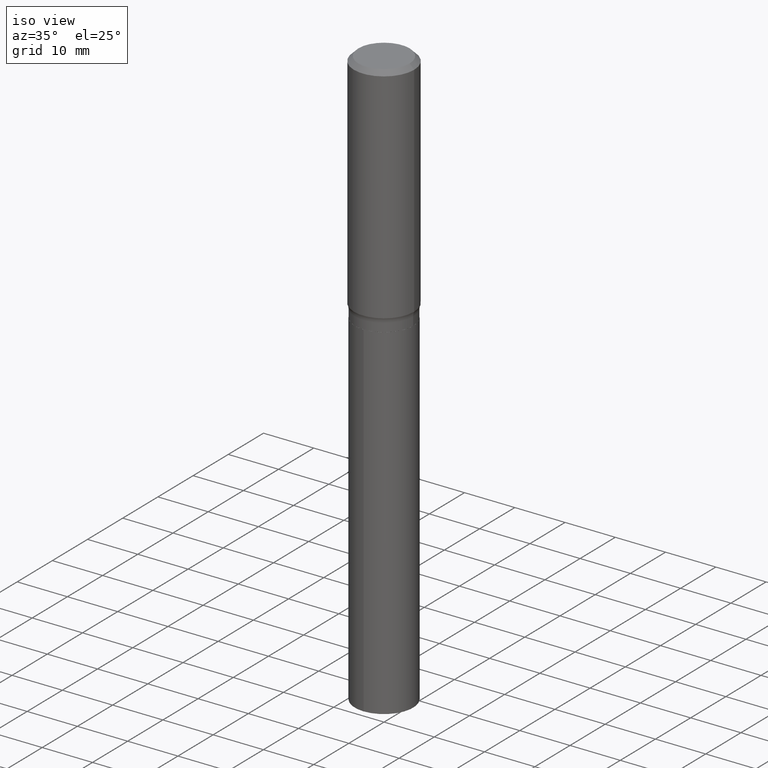
[diagram: clean part render]
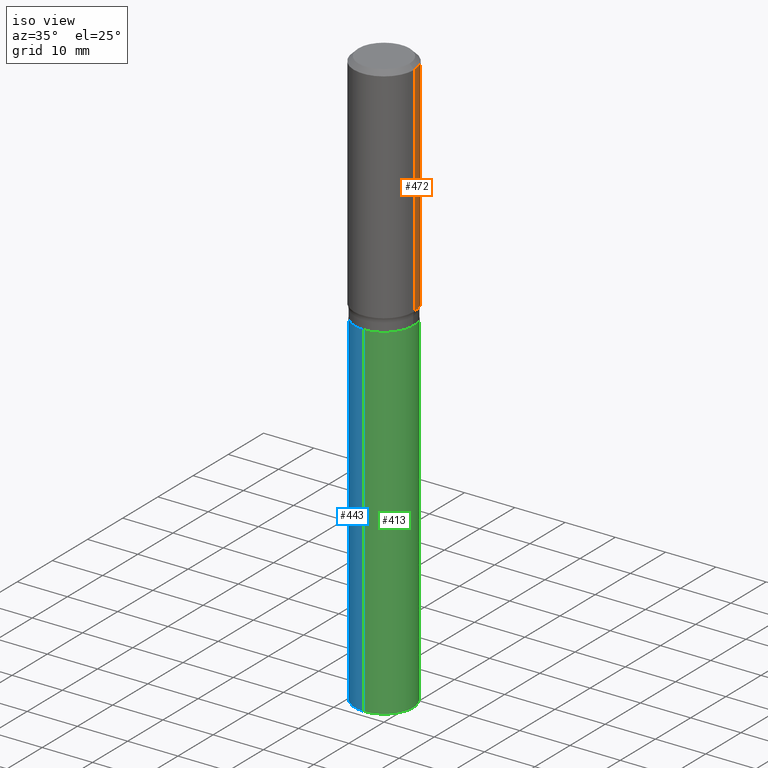
[diagram: same view with three faces highlighted in distinct colors, each labeled with its STEP entity id]
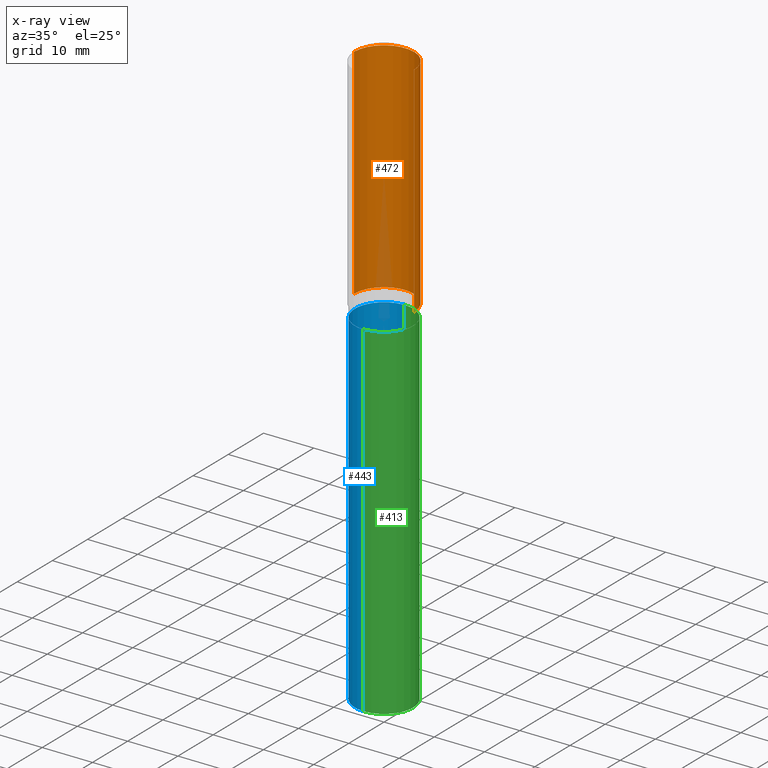
[diagram: x-ray of the same camera — body ghosted, the three highlighted faces saturated]
A machine part, iso view with three faces highlighted in distinct colors.
The next image is the same camera in x-ray (body ghosted, the three faces saturated) — at least one of them is partly hidden behind the body in this view.
Their STEP definitions:

[orange] entity #472 — the highlighted cylindrical surface (partial cylindrical patch) has radius 5.9995 mm, axis along (-0, 0, 1).
#18 = CARTESIAN_POINT ( 'NONE',  ( 0.000000000000000000, 0.000000000000000000, 0.000000000000000000 ) ) ;
#31 = EDGE_LOOP ( 'NONE', ( #364, #403, #134, #34 ) ) ;
#34 = ORIENTED_EDGE ( 'NONE', *, *, #219, .F. ) ;
#53 = CARTESIAN_POINT ( 'NONE',  ( 4.274918014208439573E-29, -6.103449953621363229E-15, -1.748097544076709253 ) ) ;
#59 = VERTEX_POINT ( 'NONE', #353 ) ;
#65 = DIRECTION ( 'NONE',  ( -2.445468806185136877E-29, 3.491481338843145188E-15, 1.000000000000000000 ) ) ;
#74 = CARTESIAN_POINT ( 'NONE',  ( 0.2362000000000002153, -7.752825738090861332E-15, -1.748097544076709253 ) ) ;
#83 = CIRCLE ( 'NONE', #102, 0.2361999999999999933 ) ;
#87 = DIRECTION ( 'NONE',  ( -2.445468806185136597E-29, 3.491481338843145583E-15, 1.000000000000000000 ) ) ;
#91 = DIRECTION ( 'NONE',  ( 1.000000000000000000, -6.982962677686265922E-15, 0.000000000000000000 ) ) ;
#102 = AXIS2_PLACEMENT_3D ( 'NONE', #274, #87, #238 ) ;
#104 = AXIS2_PLACEMENT_3D ( 'NONE', #53, #176, #91 ) ;
#106 = VERTEX_POINT ( 'NONE', #470 ) ;
#129 = EDGE_CURVE ( 'NONE', #106, #59, #83, .T. ) ;
#134 = ORIENTED_EDGE ( 'NONE', *, *, #129, .F. ) ;
#140 = CARTESIAN_POINT ( 'NONE',  ( 0.2362000000000001321, -1.649375784469497117E-15, 1.151752954443000789E-29 ) ) ;
#176 = DIRECTION ( 'NONE',  ( -2.445468806185136597E-29, 3.491481338843145583E-15, 1.000000000000000000 ) ) ;
#179 = CYLINDRICAL_SURFACE ( 'NONE', #451, 0.2362000000000001321 ) ;
#199 = DIRECTION ( 'NONE',  ( 1.000000000000000000, -6.982962677686266711E-15, 4.876176775795936353E-29 ) ) ;
#210 = FACE_OUTER_BOUND ( 'NONE', #31, .T. ) ;
#214 = DIRECTION ( 'NONE',  ( -2.445468806185136877E-29, 3.491481338843145188E-15, 1.000000000000000000 ) ) ;
#219 = EDGE_CURVE ( 'NONE', #392, #106, #483, .T. ) ;
#238 = DIRECTION ( 'NONE',  ( 1.000000000000000000, -6.982962677686266711E-15, 0.000000000000000000 ) ) ;
#259 = VECTOR ( 'NONE', #214, 39.37007874015748143 ) ;
#272 = CARTESIAN_POINT ( 'NONE',  ( -0.2362000000000002153, -4.425148011756005257E-15, -1.748097544076709253 ) ) ;
#274 = CARTESIAN_POINT ( 'NONE',  ( 8.664295980313993487E-31, -1.237031838352134079E-16, -0.03543000000000021826 ) ) ;
#311 = LINE ( 'NONE', #467, #441 ) ;
#321 = VERTEX_POINT ( 'NONE', #272 ) ;
#353 = CARTESIAN_POINT ( 'NONE',  ( -0.2361999999999999933, -1.435274626862930827E-15, -0.03543000000000021826 ) ) ;
#364 = ORIENTED_EDGE ( 'NONE', *, *, #433, .T. ) ;
#392 = VERTEX_POINT ( 'NONE', #74 ) ;
#403 = ORIENTED_EDGE ( 'NONE', *, *, #478, .T. ) ;
#433 = EDGE_CURVE ( 'NONE', #392, #321, #473, .T. ) ;
#440 = DIRECTION ( 'NONE',  ( -2.445468806185136597E-29, 3.491481338843145583E-15, 1.000000000000000000 ) ) ;
#441 = VECTOR ( 'NONE', #65, 39.37007874015748143 ) ;
#451 = AXIS2_PLACEMENT_3D ( 'NONE', #18, #440, #199 ) ;
#467 = CARTESIAN_POINT ( 'NONE',  ( -0.2362000000000001321, 1.678301941865357577E-15, -1.161852468318209457E-29 ) ) ;
#470 = CARTESIAN_POINT ( 'NONE',  ( 0.2361999999999999933, -1.773078968304709514E-15, -0.03543000000000021826 ) ) ;
#472 = ADVANCED_FACE ( 'NONE', ( #210 ), #179, .T. ) ;
#473 = CIRCLE ( 'NONE', #104, 0.2362000000000002431 ) ;
#478 = EDGE_CURVE ( 'NONE', #321, #59, #311, .T. ) ;
#483 = LINE ( 'NONE', #140, #259 ) ;

[blue] entity #443 — the highlighted cylindrical surface (edge-blend (fillet) strip) has radius 5.8001 mm, axis along (-0, 0, 1).
#11 = DIRECTION ( 'NONE',  ( -2.445463332132347352E-29, 3.491489177998303329E-15, 1.000000000000000000 ) ) ;
#15 = DIRECTION ( 'NONE',  ( -6.982962677686265922E-15, -1.000000000000000000, 2.392684907960817401E-15 ) ) ;
#20 = ORIENTED_EDGE ( 'NONE', *, *, #69, .F. ) ;
#43 = CARTESIAN_POINT ( 'NONE',  ( 1.622524337108233918E-15, 0.2283499999999935581, -1.850700000000000900 ) ) ;
#47 = ORIENTED_EDGE ( 'NONE', *, *, #165, .T. ) ;
#51 = EDGE_LOOP ( 'NONE', ( #354, #213, #47, #20 ) ) ;
#58 = CARTESIAN_POINT ( 'NONE',  ( -1.594559527449547323E-15, -0.2283500000000158459, -4.553740611330542976 ) ) ;
#69 = EDGE_CURVE ( 'NONE', #447, #455, #310, .T. ) ;
#78 = DIRECTION ( 'NONE',  ( -2.445463332132347352E-29, 3.491489177998303329E-15, 1.000000000000000000 ) ) ;
#89 = CARTESIAN_POINT ( 'NONE',  ( 4.525829119606832626E-29, -6.461684513797009689E-15, -1.850700000000000012 ) ) ;
#97 = DIRECTION ( 'NONE',  ( -2.445463332132347352E-29, 3.491489177998303329E-15, 1.000000000000000000 ) ) ;
#122 = CIRCLE ( 'NONE', #378, 0.2283499999999999974 ) ;
#132 = CYLINDRICAL_SURFACE ( 'NONE', #339, 0.2283499999999999974 ) ;
#135 = FACE_OUTER_BOUND ( 'NONE', #51, .T. ) ;
#155 = LINE ( 'NONE', #43, #209 ) ;
#165 = EDGE_CURVE ( 'NONE', #215, #455, #329, .T. ) ;
#166 = DIRECTION ( 'NONE',  ( -6.982962677686265922E-15, -1.000000000000000000, 3.589027361941226102E-15 ) ) ;
#174 = AXIS2_PLACEMENT_3D ( 'NONE', #89, #11, #166 ) ;
#209 = VECTOR ( 'NONE', #270, 39.37007874015748143 ) ;
#213 = ORIENTED_EDGE ( 'NONE', *, *, #449, .T. ) ;
#215 = VERTEX_POINT ( 'NONE', #58 ) ;
#218 = CARTESIAN_POINT ( 'NONE',  ( 1.622524337108299591E-15, 0.2283499999999840935, -4.553740611330543864 ) ) ;
#226 = VERTEX_POINT ( 'NONE', #218 ) ;
#270 = DIRECTION ( 'NONE',  ( -2.445463332132347072E-29, 3.491489177998303329E-15, 1.000000000000000000 ) ) ;
#283 = CARTESIAN_POINT ( 'NONE',  ( -1.594559527449613390E-15, -0.2283500000000064645, -1.850699999999999124 ) ) ;
#310 = CIRCLE ( 'NONE', #174, 0.2283499999999999974 ) ;
#328 = CARTESIAN_POINT ( 'NONE',  ( 4.525829119606832626E-29, -6.461684513797009689E-15, -1.850700000000000012 ) ) ;
#329 = LINE ( 'NONE', #332, #365 ) ;
#332 = CARTESIAN_POINT ( 'NONE',  ( -1.594559527449613390E-15, -0.2283500000000064645, -1.850699999999999124 ) ) ;
#339 = AXIS2_PLACEMENT_3D ( 'NONE', #328, #78, #404 ) ;
#354 = ORIENTED_EDGE ( 'NONE', *, *, #405, .F. ) ;
#355 = CARTESIAN_POINT ( 'NONE',  ( 1.622524337108300380E-15, 0.2283499999999935581, -1.850700000000000900 ) ) ;
#365 = VECTOR ( 'NONE', #487, 39.37007874015748143 ) ;
#378 = AXIS2_PLACEMENT_3D ( 'NONE', #481, #97, #15 ) ;
#404 = DIRECTION ( 'NONE',  ( -6.982962677686265922E-15, -1.000000000000000000, 3.589027361941226102E-15 ) ) ;
#405 = EDGE_CURVE ( 'NONE', #226, #447, #155, .T. ) ;
#443 = ADVANCED_FACE ( 'NONE', ( #135 ), #132, .T. ) ;
#447 = VERTEX_POINT ( 'NONE', #355 ) ;
#449 = EDGE_CURVE ( 'NONE', #226, #215, #122, .T. ) ;
#455 = VERTEX_POINT ( 'NONE', #283 ) ;
#481 = CARTESIAN_POINT ( 'NONE',  ( 1.113601581988027933E-28, -1.589932155594752005E-14, -4.553740611330542976 ) ) ;
#487 = DIRECTION ( 'NONE',  ( -2.445463332132347072E-29, 3.491489177998303329E-15, 1.000000000000000000 ) ) ;

[green] entity #413 — the highlighted cylindrical surface (edge-blend (fillet) strip) has radius 5.8001 mm, axis along (-0, 0, 1).
#10 = FACE_OUTER_BOUND ( 'NONE', #280, .T. ) ;
#17 = ORIENTED_EDGE ( 'NONE', *, *, #345, .F. ) ;
#19 = DIRECTION ( 'NONE',  ( -6.982962677686265922E-15, -1.000000000000000000, 2.392684907960817401E-15 ) ) ;
#43 = CARTESIAN_POINT ( 'NONE',  ( 1.622524337108233918E-15, 0.2283499999999935581, -1.850700000000000900 ) ) ;
#58 = CARTESIAN_POINT ( 'NONE',  ( -1.594559527449547323E-15, -0.2283500000000158459, -4.553740611330542976 ) ) ;
#62 = DIRECTION ( 'NONE',  ( -2.445463332132347352E-29, 3.491489177998303329E-15, 1.000000000000000000 ) ) ;
#76 = DIRECTION ( 'NONE',  ( -2.445463332132347352E-29, 3.491489177998303329E-15, 1.000000000000000000 ) ) ;
#103 = CARTESIAN_POINT ( 'NONE',  ( 1.113601581988027933E-28, -1.589932155594752005E-14, -4.553740611330542976 ) ) ;
#155 = LINE ( 'NONE', #43, #209 ) ;
#162 = CIRCLE ( 'NONE', #356, 0.2283499999999999974 ) ;
#164 = DIRECTION ( 'NONE',  ( -2.445463332132347352E-29, 3.491489177998303329E-15, 1.000000000000000000 ) ) ;
#165 = EDGE_CURVE ( 'NONE', #215, #455, #329, .T. ) ;
#191 = CARTESIAN_POINT ( 'NONE',  ( 4.525829119606832626E-29, -6.461684513797009689E-15, -1.850700000000000012 ) ) ;
#198 = EDGE_CURVE ( 'NONE', #215, #226, #162, .T. ) ;
#209 = VECTOR ( 'NONE', #270, 39.37007874015748143 ) ;
#215 = VERTEX_POINT ( 'NONE', #58 ) ;
#218 = CARTESIAN_POINT ( 'NONE',  ( 1.622524337108299591E-15, 0.2283499999999840935, -4.553740611330543864 ) ) ;
#226 = VERTEX_POINT ( 'NONE', #218 ) ;
#246 = ORIENTED_EDGE ( 'NONE', *, *, #405, .T. ) ;
#252 = ORIENTED_EDGE ( 'NONE', *, *, #165, .F. ) ;
#256 = ORIENTED_EDGE ( 'NONE', *, *, #198, .T. ) ;
#269 = CARTESIAN_POINT ( 'NONE',  ( 4.525829119606832626E-29, -6.461684513797009689E-15, -1.850700000000000012 ) ) ;
#270 = DIRECTION ( 'NONE',  ( -2.445463332132347072E-29, 3.491489177998303329E-15, 1.000000000000000000 ) ) ;
#280 = EDGE_LOOP ( 'NONE', ( #256, #246, #17, #252 ) ) ;
#283 = CARTESIAN_POINT ( 'NONE',  ( -1.594559527449613390E-15, -0.2283500000000064645, -1.850699999999999124 ) ) ;
#296 = AXIS2_PLACEMENT_3D ( 'NONE', #269, #164, #382 ) ;
#305 = DIRECTION ( 'NONE',  ( -6.982962677686265922E-15, -1.000000000000000000, 3.589027361941226102E-15 ) ) ;
#312 = AXIS2_PLACEMENT_3D ( 'NONE', #191, #76, #305 ) ;
#329 = LINE ( 'NONE', #332, #365 ) ;
#332 = CARTESIAN_POINT ( 'NONE',  ( -1.594559527449613390E-15, -0.2283500000000064645, -1.850699999999999124 ) ) ;
#345 = EDGE_CURVE ( 'NONE', #455, #447, #435, .T. ) ;
#355 = CARTESIAN_POINT ( 'NONE',  ( 1.622524337108300380E-15, 0.2283499999999935581, -1.850700000000000900 ) ) ;
#356 = AXIS2_PLACEMENT_3D ( 'NONE', #103, #62, #19 ) ;
#365 = VECTOR ( 'NONE', #487, 39.37007874015748143 ) ;
#382 = DIRECTION ( 'NONE',  ( -6.982962677686265922E-15, -1.000000000000000000, 3.589027361941226102E-15 ) ) ;
#405 = EDGE_CURVE ( 'NONE', #226, #447, #155, .T. ) ;
#413 = ADVANCED_FACE ( 'NONE', ( #10 ), #423, .T. ) ;
#423 = CYLINDRICAL_SURFACE ( 'NONE', #296, 0.2283499999999999974 ) ;
#435 = CIRCLE ( 'NONE', #312, 0.2283499999999999974 ) ;
#447 = VERTEX_POINT ( 'NONE', #355 ) ;
#455 = VERTEX_POINT ( 'NONE', #283 ) ;
#487 = DIRECTION ( 'NONE',  ( -2.445463332132347072E-29, 3.491489177998303329E-15, 1.000000000000000000 ) ) ;